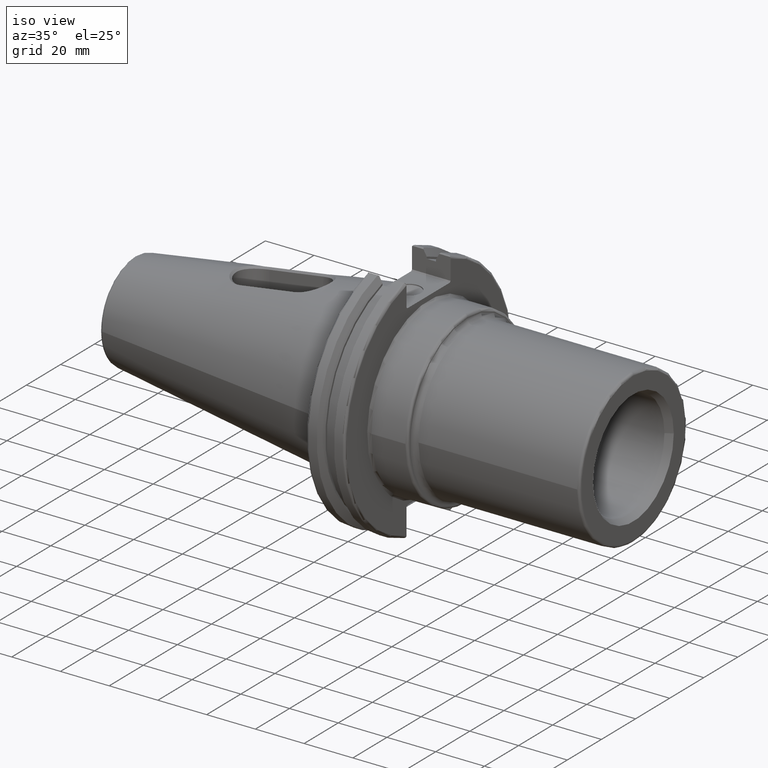
[diagram: clean part render]
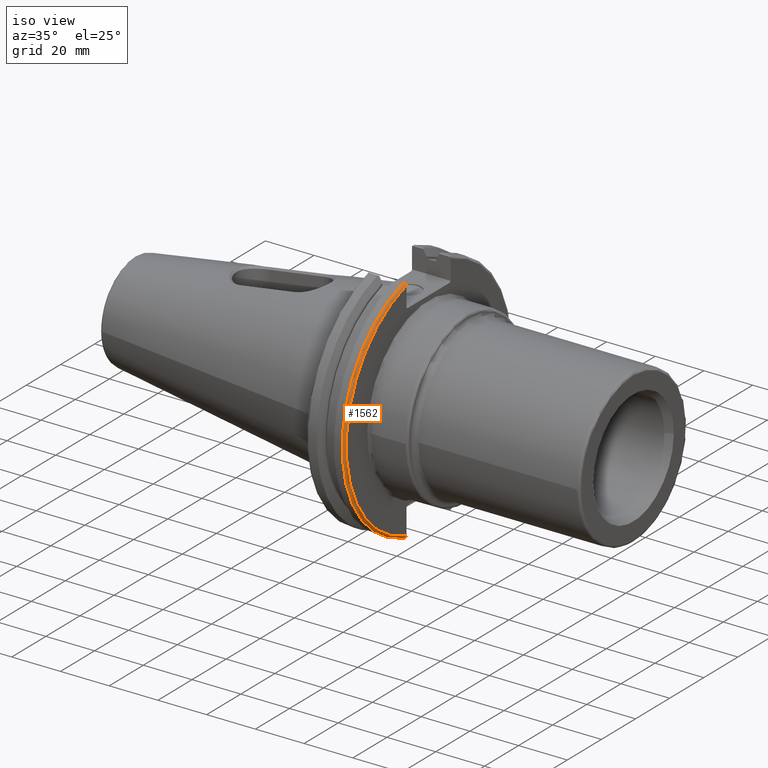
[diagram: same view with one face highlighted and labeled with its STEP entity id]
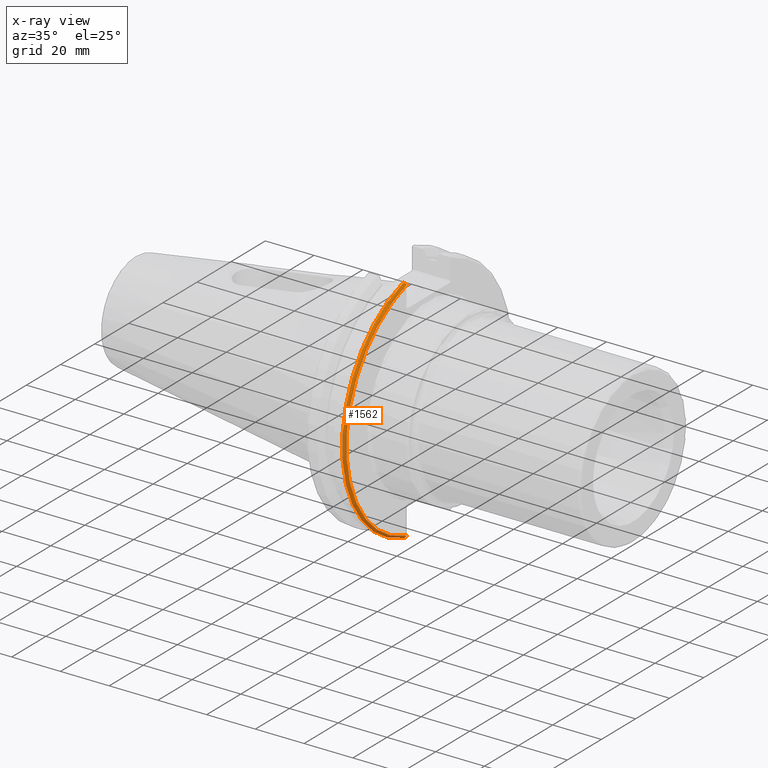
[diagram: x-ray of the same camera — body ghosted, the highlighted face saturated]
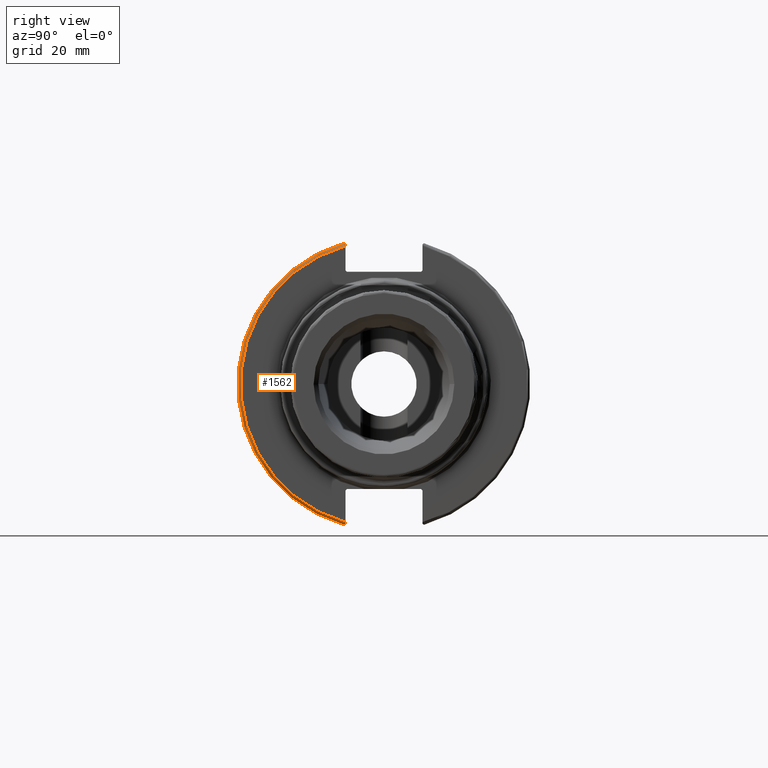
[diagram: same view with one face highlighted and labeled with its STEP entity id]
A machine part, iso view. The second image highlights one B-rep face of the part: STEP entity #1562.
The next image is the same camera in x-ray: the body ghosted, the highlighted face saturated — about 0% of this face is hidden behind the body in this view.
A second angle (right view) of the same face is appended — the face is thin or edge-on in the first view.
In plain terms, the highlighted toroidal blend (fillet) surface has major radius 48.2125 mm and minor (blend) radius 1 mm.
Its self-contained STEP definition (entity closure, byte-faithful):
#37=TOROIDAL_SURFACE('',#1697,48.2125,1.);
#102=B_SPLINE_CURVE_WITH_KNOTS('',3,(#3220,#3221,#3222,#3223,#3224,#3225),
 .UNSPECIFIED.,.F.,.F.,(4,2,4),(0.097707143645253,0.112358403262293,0.150882178076498),
 .UNSPECIFIED.);
#103=B_SPLINE_CURVE_WITH_KNOTS('',3,(#3227,#3228,#3229,#3230,#3231,#3232),
 .UNSPECIFIED.,.F.,.F.,(4,2,4),(0.452859694247731,0.491383469061936,0.506034728678978),
 .UNSPECIFIED.);
#104=B_SPLINE_CURVE_WITH_KNOTS('',3,(#3234,#3235,#3236,#3237,#3238,#3239,
#3240,#3241),.UNSPECIFIED.,.F.,.F.,(4,2,2,4),(-0.104075769062722,-0.0730268503455477,
-0.0343639873656263,0.),.UNSPECIFIED.);
#105=B_SPLINE_CURVE_WITH_KNOTS('',3,(#3244,#3245,#3246,#3247,#3248,#3249,
#3250,#3251),.UNSPECIFIED.,.F.,.F.,(4,2,2,4),(0.,0.0364336453281818,0.0778720357014993,
0.104197480645881),.UNSPECIFIED.);
#220=FACE_OUTER_BOUND('',#314,.T.);
#314=EDGE_LOOP('',(#1303,#1304,#1305,#1306,#1307,#1308));
#601=CIRCLE('',#1682,48.2125);
#610=CIRCLE('',#1698,49.2125);
#713=VERTEX_POINT('',#3106);
#714=VERTEX_POINT('',#3108);
#745=VERTEX_POINT('',#3219);
#746=VERTEX_POINT('',#3226);
#747=VERTEX_POINT('',#3233);
#748=VERTEX_POINT('',#3242);
#909=EDGE_CURVE('',#714,#713,#601,.T.);
#947=EDGE_CURVE('',#745,#714,#102,.T.);
#948=EDGE_CURVE('',#713,#746,#103,.T.);
#949=EDGE_CURVE('',#746,#747,#104,.T.);
#950=EDGE_CURVE('',#747,#748,#610,.T.);
#951=EDGE_CURVE('',#748,#745,#105,.T.);
#1303=ORIENTED_EDGE('',*,*,#947,.T.);
#1304=ORIENTED_EDGE('',*,*,#909,.T.);
#1305=ORIENTED_EDGE('',*,*,#948,.T.);
#1306=ORIENTED_EDGE('',*,*,#949,.T.);
#1307=ORIENTED_EDGE('',*,*,#950,.T.);
#1308=ORIENTED_EDGE('',*,*,#951,.T.);
#1562=ADVANCED_FACE('',(#220),#37,.T.);
#1682=AXIS2_PLACEMENT_3D('',#3109,#1925,#1926);
#1697=AXIS2_PLACEMENT_3D('',#3218,#1976,#1977);
#1698=AXIS2_PLACEMENT_3D('',#3243,#1978,#1979);
#1925=DIRECTION('center_axis',(-1.,0.,0.));
#1926=DIRECTION('ref_axis',(0.,-1.,1.60812264967664E-16));
#1976=DIRECTION('center_axis',(1.,0.,0.));
#1977=DIRECTION('ref_axis',(0.,0.,-1.));
#1978=DIRECTION('center_axis',(1.,0.,0.));
#1979=DIRECTION('ref_axis',(0.,-1.,1.60812264967664E-16));
#3106=CARTESIAN_POINT('',(19.05,-12.95,46.4407434937254));
#3108=CARTESIAN_POINT('',(19.05,-12.95,-46.4407434937254));
#3109=CARTESIAN_POINT('Origin',(19.05,0.,0.));
#3218=CARTESIAN_POINT('Origin',(18.05,0.,0.));
#3219=CARTESIAN_POINT('',(18.9055020570566,-12.95,-46.9780755322917));
#3220=CARTESIAN_POINT('Ctrl Pts',(18.9055020570566,-12.95,-46.9780755322917));
#3221=CARTESIAN_POINT('Ctrl Pts',(18.9322353702005,-12.95,-46.9322596399785));
#3222=CARTESIAN_POINT('Ctrl Pts',(18.9549831813775,-12.95,-46.8849952622217));
#3223=CARTESIAN_POINT('Ctrl Pts',(19.0209992543299,-12.95,-46.7204975987179));
#3224=CARTESIAN_POINT('Ctrl Pts',(19.05,-12.95,-46.5691560764394));
#3225=CARTESIAN_POINT('Ctrl Pts',(19.05,-12.95,-46.4407434937254));
#3226=CARTESIAN_POINT('',(18.9055020570566,-12.95,46.9780755322918));
#3227=CARTESIAN_POINT('Ctrl Pts',(19.05,-12.95,46.4407434937254));
#3228=CARTESIAN_POINT('Ctrl Pts',(19.05,-12.95,46.5691560764394));
#3229=CARTESIAN_POINT('Ctrl Pts',(19.0209992543299,-12.95,46.7204975987179));
#3230=CARTESIAN_POINT('Ctrl Pts',(18.9549831813775,-12.95,46.8849952622217));
#3231=CARTESIAN_POINT('Ctrl Pts',(18.9322353702005,-12.95,46.9322596399785));
#3232=CARTESIAN_POINT('Ctrl Pts',(18.9055020570566,-12.95,46.9780755322918));
#3233=CARTESIAN_POINT('',(18.05,-13.4317035994433,47.3440544806494));
#3234=CARTESIAN_POINT('Ctrl Pts',(18.9055020570566,-12.95,46.9780755322918));
#3235=CARTESIAN_POINT('Ctrl Pts',(18.8571496772125,-13.0300321736484,47.0388807469102));
#3236=CARTESIAN_POINT('Ctrl Pts',(18.792640282015,-13.1083611826073,47.0983919657547));
#3237=CARTESIAN_POINT('Ctrl Pts',(18.6399248789208,-13.2478194810695,47.2043467509586));
#3238=CARTESIAN_POINT('Ctrl Pts',(18.5186188350904,-13.3242014686233,47.2623787015413));
#3239=CARTESIAN_POINT('Ctrl Pts',(18.2983889675417,-13.4067722493645,47.3251126473446));
#3240=CARTESIAN_POINT('Ctrl Pts',(18.1645466245521,-13.4317035994433,47.3440544806494));
#3241=CARTESIAN_POINT('Ctrl Pts',(18.05,-13.4317035994433,47.3440544806494));
#3242=CARTESIAN_POINT('',(18.05,-13.4317035994433,-47.3440544806494));
#3243=CARTESIAN_POINT('Origin',(18.05,0.,0.));
#3244=CARTESIAN_POINT('Ctrl Pts',(18.05,-13.4317035994433,-47.3440544806494));
#3245=CARTESIAN_POINT('Ctrl Pts',(18.1714454844273,-13.4317035994433,-47.3440544806494));
#3246=CARTESIAN_POINT('Ctrl Pts',(18.3128758164404,-13.4037095171132,-47.3227857070233));
#3247=CARTESIAN_POINT('Ctrl Pts',(18.54495745946,-13.3111366376071,-47.2524525703658));
#3248=CARTESIAN_POINT('Ctrl Pts',(18.6710431007969,-13.2254637570201,-47.1873617743322));
#3249=CARTESIAN_POINT('Ctrl Pts',(18.811782280389,-13.0847856162862,-47.0804802022157));
#3250=CARTESIAN_POINT('Ctrl Pts',(18.8641312352177,-13.0184763978125,-47.0301011349397));
#3251=CARTESIAN_POINT('Ctrl Pts',(18.9055020570566,-12.95,-46.9780755322917));